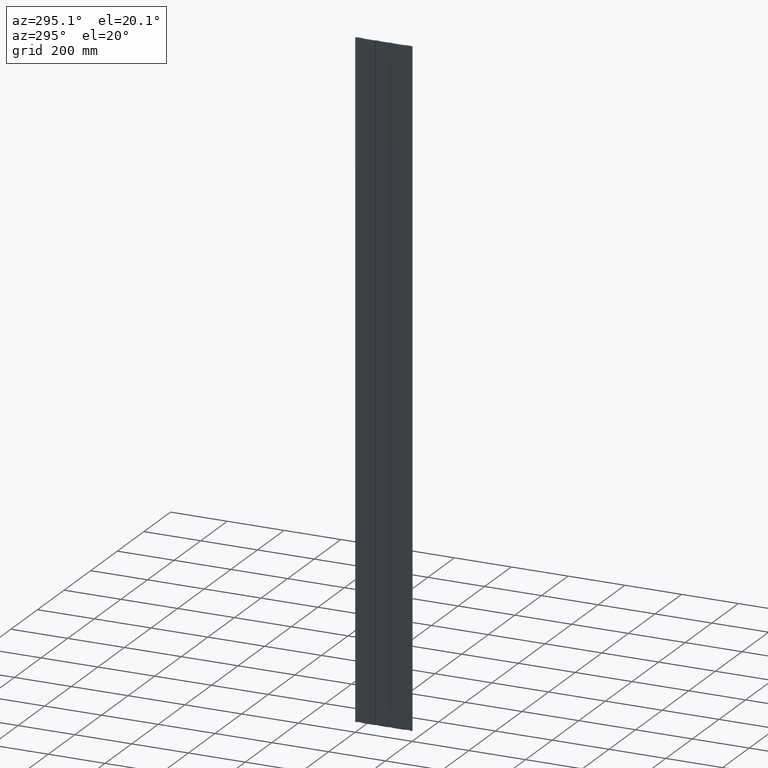
[diagram: clean part render]
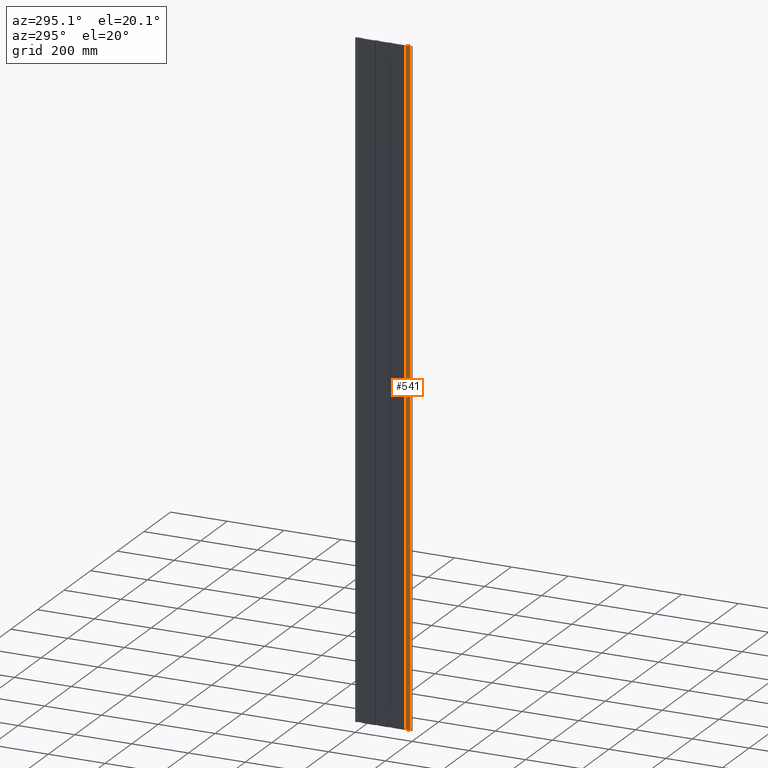
[diagram: same view with one face highlighted and labeled with its STEP entity id]
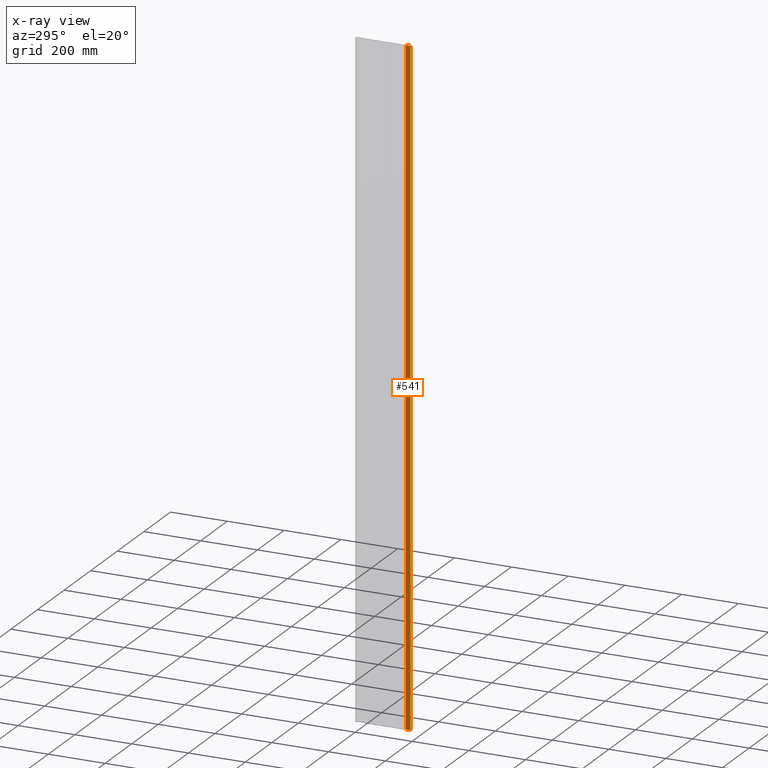
[diagram: x-ray of the same camera — body ghosted, the highlighted face saturated]
A machine part, auxiliary view. The second image highlights one B-rep face of the part: STEP entity #541.
The next image is the same camera in x-ray: the body ghosted, the highlighted face saturated — about 0% of this face is hidden behind the body in this view.
In plain terms, the highlighted planar face has unit normal (1, 0, -0).
Its self-contained STEP definition (entity closure, byte-faithful):
#16 = LINE ( 'NONE', #409, #2002 ) ;
#50 = EDGE_CURVE ( 'NONE', #1064, #1877, #1434, .T. ) ;
#67 = EDGE_CURVE ( 'NONE', #151, #1877, #1367, .T. ) ;
#71 = EDGE_CURVE ( 'NONE', #2372, #151, #1945, .T. ) ;
#96 = CARTESIAN_POINT ( 'NONE',  ( 3.000000000000002700, 7.000000000000006200, -1162.000000000000000 ) ) ;
#151 = VERTEX_POINT ( 'NONE', #2289 ) ;
#197 = CARTESIAN_POINT ( 'NONE',  ( 3.000000000000002700, 7.000000000000006200, 1162.000000000000000 ) ) ;
#342 = DIRECTION ( 'NONE',  ( -5.481106564558858200E-017, 1.000000000000000000, 0.0000000000000000000 ) ) ;
#409 = CARTESIAN_POINT ( 'NONE',  ( 2.999999999999999600, 22.82457351945706500, 1162.000000000000000 ) ) ;
#454 = VECTOR ( 'NONE', #1925, 1000.000000000000000 ) ;
#541 = ADVANCED_FACE ( 'NONE', ( #1964 ), #2293, .F. ) ;
#546 = DIRECTION ( 'NONE',  ( 5.481106564558858200E-017, -1.000000000000000000, -0.0000000000000000000 ) ) ;
#664 = ORIENTED_EDGE ( 'NONE', *, *, #50, .T. ) ;
#834 = CARTESIAN_POINT ( 'NONE',  ( 2.999999999999999600, 22.82457351945706500, 1162.000000000000000 ) ) ;
#910 = CARTESIAN_POINT ( 'NONE',  ( 3.000000000000002700, 7.000000000000006200, 1162.000000000000000 ) ) ;
#1051 = EDGE_CURVE ( 'NONE', #2372, #1064, #16, .T. ) ;
#1062 = EDGE_LOOP ( 'NONE', ( #664, #2024, #1677, #2404 ) ) ;
#1064 = VERTEX_POINT ( 'NONE', #1324 ) ;
#1313 = DIRECTION ( 'NONE',  ( -0.0000000000000000000, -0.0000000000000000000, -1.000000000000000000 ) ) ;
#1315 = VECTOR ( 'NONE', #2148, 1000.000000000000000 ) ;
#1324 = CARTESIAN_POINT ( 'NONE',  ( 2.999999999999999600, 22.82457351945706500, -1162.000000000000000 ) ) ;
#1367 = LINE ( 'NONE', #197, #454 ) ;
#1434 = LINE ( 'NONE', #2533, #2490 ) ;
#1445 = DIRECTION ( 'NONE',  ( 1.000000000000000000, 5.481106564558858200E-017, -0.0000000000000000000 ) ) ;
#1677 = ORIENTED_EDGE ( 'NONE', *, *, #71, .F. ) ;
#1877 = VERTEX_POINT ( 'NONE', #96 ) ;
#1925 = DIRECTION ( 'NONE',  ( -0.0000000000000000000, -0.0000000000000000000, -1.000000000000000000 ) ) ;
#1945 = LINE ( 'NONE', #910, #1315 ) ;
#1964 = FACE_OUTER_BOUND ( 'NONE', #1062, .T. ) ;
#1976 = AXIS2_PLACEMENT_3D ( 'NONE', #2495, #1445, #342 ) ;
#2002 = VECTOR ( 'NONE', #1313, 1000.000000000000000 ) ;
#2024 = ORIENTED_EDGE ( 'NONE', *, *, #67, .F. ) ;
#2148 = DIRECTION ( 'NONE',  ( 5.481106564558858200E-017, -1.000000000000000000, -0.0000000000000000000 ) ) ;
#2289 = CARTESIAN_POINT ( 'NONE',  ( 3.000000000000002700, 7.000000000000006200, 1162.000000000000000 ) ) ;
#2293 = PLANE ( 'NONE',  #1976 ) ;
#2372 = VERTEX_POINT ( 'NONE', #834 ) ;
#2404 = ORIENTED_EDGE ( 'NONE', *, *, #1051, .T. ) ;
#2490 = VECTOR ( 'NONE', #546, 1000.000000000000000 ) ;
#2495 = CARTESIAN_POINT ( 'NONE',  ( 3.000000000000002700, 7.000000000000006200, 1162.000000000000000 ) ) ;
#2533 = CARTESIAN_POINT ( 'NONE',  ( 3.000000000000002700, 7.000000000000006200, -1162.000000000000000 ) ) ;